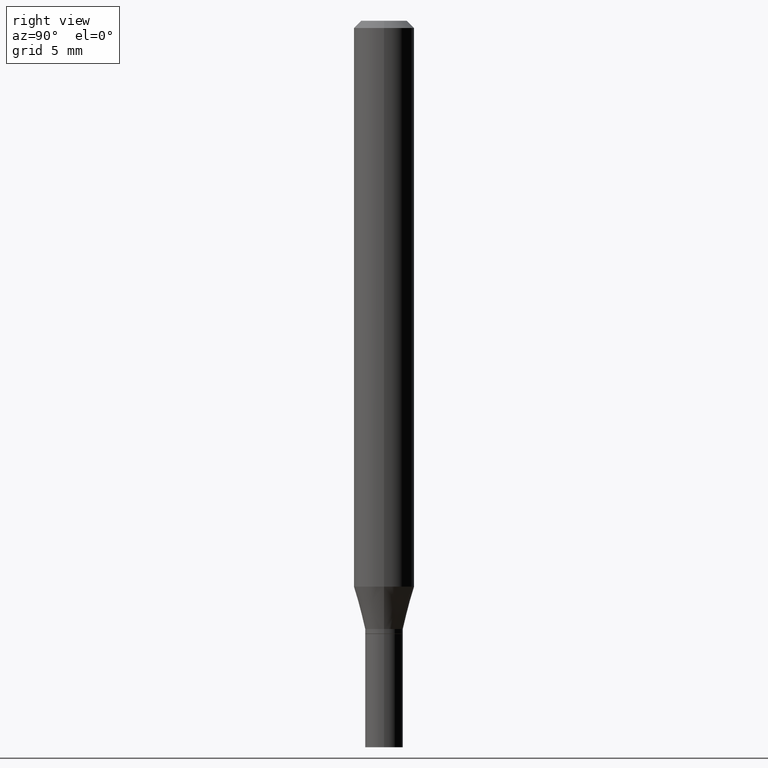
[diagram: clean part render]
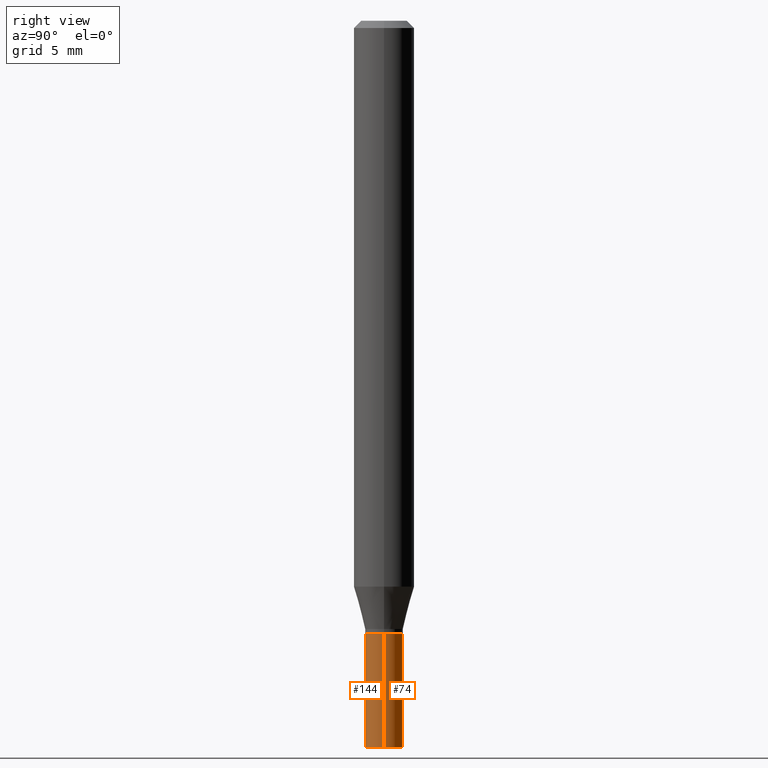
[diagram: same view with one multi-face feature highlighted, each face labeled with its STEP entity id]
A machine part, right view. The highlighted faces form ONE feature: a constant-radius fillet chain: 2 tangent blend faces with common blend radius 0.9906 mm. The faces share edges in the B-rep.
Their STEP definitions:
[1] entity #144 (Cylinder):
#13 = DIRECTION ( 'NONE',  ( -2.445468806185136877E-29, 3.491481338843145188E-15, 1.000000000000000000 ) ) ;
#19 = DIRECTION ( 'NONE',  ( 1.000000000000000000, -6.982962677686265922E-15, 4.876176775795935793E-29 ) ) ;
#20 = LINE ( 'NONE', #143, #42 ) ;
#23 = DIRECTION ( 'NONE',  ( -2.445468806185136597E-29, 3.491481338843145583E-15, 1.000000000000000000 ) ) ;
#38 = VERTEX_POINT ( 'NONE', #200 ) ;
#40 = EDGE_CURVE ( 'NONE', #38, #77, #20, .T. ) ;
#42 = VECTOR ( 'NONE', #13, 39.37007874015748143 ) ;
#49 = CARTESIAN_POINT ( 'NONE',  ( 3.668203209277704895E-29, -5.237222008264718177E-15, -1.500000000000000222 ) ) ;
#59 = CIRCLE ( 'NONE', #186, 0.03899999999999999994 ) ;
#73 = CIRCLE ( 'NONE', #400, 0.03899999999999999994 ) ;
#77 = VERTEX_POINT ( 'NONE', #241 ) ;
#133 = LINE ( 'NONE', #426, #225 ) ;
#137 = DIRECTION ( 'NONE',  ( -2.445468806185136597E-29, 3.491481338843145583E-15, 1.000000000000000000 ) ) ;
#143 = CARTESIAN_POINT ( 'NONE',  ( -0.03899999999999999994, 2.771116669464390721E-16, -1.918384685199413078E-30 ) ) ;
#144 = ADVANCED_FACE ( 'NONE', ( #389 ), #455, .T. ) ;
#184 = ORIENTED_EDGE ( 'NONE', *, *, #354, .T. ) ;
#186 = AXIS2_PLACEMENT_3D ( 'NONE', #49, #196, #190 ) ;
#187 = EDGE_CURVE ( 'NONE', #209, #220, #133, .T. ) ;
#190 = DIRECTION ( 'NONE',  ( 1.000000000000000000, -6.982962677686258033E-15, 0.000000000000000000 ) ) ;
#196 = DIRECTION ( 'NONE',  ( -2.445468806185136597E-29, 3.491481338843145583E-15, 1.000000000000000000 ) ) ;
#200 = CARTESIAN_POINT ( 'NONE',  ( -0.03899999999999999994, -4.551607024673631246E-15, -1.500000000000000222 ) ) ;
#208 = CARTESIAN_POINT ( 'NONE',  ( 3.095963508630383106E-29, -4.420215374975422163E-15, -1.266000000000000014 ) ) ;
#209 = VERTEX_POINT ( 'NONE', #398 ) ;
#210 = DIRECTION ( 'NONE',  ( -2.445468806185136877E-29, 3.491481338843145188E-15, 1.000000000000000000 ) ) ;
#220 = VERTEX_POINT ( 'NONE', #431 ) ;
#222 = ORIENTED_EDGE ( 'NONE', *, *, #447, .F. ) ;
#225 = VECTOR ( 'NONE', #210, 39.37007874015748143 ) ;
#240 = AXIS2_PLACEMENT_3D ( 'NONE', #396, #23, #19 ) ;
#241 = CARTESIAN_POINT ( 'NONE',  ( -0.03899999999999999994, -4.551607024673631246E-15, -1.266000000000000014 ) ) ;
#331 = EDGE_LOOP ( 'NONE', ( #391, #184, #422, #222 ) ) ;
#354 = EDGE_CURVE ( 'NONE', #38, #209, #59, .T. ) ;
#357 = DIRECTION ( 'NONE',  ( 1.000000000000000000, -6.982962677686258033E-15, 0.000000000000000000 ) ) ;
#389 = FACE_OUTER_BOUND ( 'NONE', #331, .T. ) ;
#391 = ORIENTED_EDGE ( 'NONE', *, *, #40, .F. ) ;
#396 = CARTESIAN_POINT ( 'NONE',  ( 0.000000000000000000, 0.000000000000000000, 0.000000000000000000 ) ) ;
#398 = CARTESIAN_POINT ( 'NONE',  ( 0.03899999999999999994, -5.509557552694482989E-15, -1.500000000000000222 ) ) ;
#400 = AXIS2_PLACEMENT_3D ( 'NONE', #208, #137, #357 ) ;
#422 = ORIENTED_EDGE ( 'NONE', *, *, #187, .T. ) ;
#426 = CARTESIAN_POINT ( 'NONE',  ( 0.03899999999999999994, -2.723355444297643682E-16, 1.901708942560414931E-30 ) ) ;
#431 = CARTESIAN_POINT ( 'NONE',  ( 0.03899999999999999994, -4.692550919405186186E-15, -1.266000000000000014 ) ) ;
#447 = EDGE_CURVE ( 'NONE', #77, #220, #73, .T. ) ;
#455 = CYLINDRICAL_SURFACE ( 'NONE', #240, 0.03899999999999999994 ) ;
[2] entity #74 (Cylinder):
#5 = AXIS2_PLACEMENT_3D ( 'NONE', #160, #385, #168 ) ;
#13 = DIRECTION ( 'NONE',  ( -2.445468806185136877E-29, 3.491481338843145188E-15, 1.000000000000000000 ) ) ;
#20 = LINE ( 'NONE', #143, #42 ) ;
#38 = VERTEX_POINT ( 'NONE', #200 ) ;
#40 = EDGE_CURVE ( 'NONE', #38, #77, #20, .T. ) ;
#42 = VECTOR ( 'NONE', #13, 39.37007874015748143 ) ;
#60 = DIRECTION ( 'NONE',  ( -2.445468806185136597E-29, 3.491481338843145583E-15, 1.000000000000000000 ) ) ;
#74 = ADVANCED_FACE ( 'NONE', ( #315 ), #204, .T. ) ;
#77 = VERTEX_POINT ( 'NONE', #241 ) ;
#104 = DIRECTION ( 'NONE',  ( 1.000000000000000000, -6.982962677686258033E-15, 0.000000000000000000 ) ) ;
#106 = CIRCLE ( 'NONE', #290, 0.03899999999999999994 ) ;
#108 = ORIENTED_EDGE ( 'NONE', *, *, #439, .F. ) ;
#133 = LINE ( 'NONE', #426, #225 ) ;
#143 = CARTESIAN_POINT ( 'NONE',  ( -0.03899999999999999994, 2.771116669464390721E-16, -1.918384685199413078E-30 ) ) ;
#160 = CARTESIAN_POINT ( 'NONE',  ( 0.000000000000000000, 0.000000000000000000, 0.000000000000000000 ) ) ;
#161 = CIRCLE ( 'NONE', #318, 0.03899999999999999994 ) ;
#168 = DIRECTION ( 'NONE',  ( 1.000000000000000000, -6.982962677686265922E-15, 4.876176775795935793E-29 ) ) ;
#187 = EDGE_CURVE ( 'NONE', #209, #220, #133, .T. ) ;
#200 = CARTESIAN_POINT ( 'NONE',  ( -0.03899999999999999994, -4.551607024673631246E-15, -1.500000000000000222 ) ) ;
#201 = CARTESIAN_POINT ( 'NONE',  ( 3.095963508630383106E-29, -4.420215374975422163E-15, -1.266000000000000014 ) ) ;
#204 = CYLINDRICAL_SURFACE ( 'NONE', #5, 0.03899999999999999994 ) ;
#209 = VERTEX_POINT ( 'NONE', #398 ) ;
#210 = DIRECTION ( 'NONE',  ( -2.445468806185136877E-29, 3.491481338843145188E-15, 1.000000000000000000 ) ) ;
#220 = VERTEX_POINT ( 'NONE', #431 ) ;
#225 = VECTOR ( 'NONE', #210, 39.37007874015748143 ) ;
#227 = EDGE_CURVE ( 'NONE', #209, #38, #161, .T. ) ;
#230 = EDGE_LOOP ( 'NONE', ( #263, #460, #108, #450 ) ) ;
#241 = CARTESIAN_POINT ( 'NONE',  ( -0.03899999999999999994, -4.551607024673631246E-15, -1.266000000000000014 ) ) ;
#252 = CARTESIAN_POINT ( 'NONE',  ( 3.668203209277704895E-29, -5.237222008264718177E-15, -1.500000000000000222 ) ) ;
#263 = ORIENTED_EDGE ( 'NONE', *, *, #227, .T. ) ;
#290 = AXIS2_PLACEMENT_3D ( 'NONE', #201, #60, #361 ) ;
#315 = FACE_OUTER_BOUND ( 'NONE', #230, .T. ) ;
#318 = AXIS2_PLACEMENT_3D ( 'NONE', #252, #441, #104 ) ;
#361 = DIRECTION ( 'NONE',  ( 1.000000000000000000, -6.982962677686258033E-15, 0.000000000000000000 ) ) ;
#385 = DIRECTION ( 'NONE',  ( -2.445468806185136597E-29, 3.491481338843145583E-15, 1.000000000000000000 ) ) ;
#398 = CARTESIAN_POINT ( 'NONE',  ( 0.03899999999999999994, -5.509557552694482989E-15, -1.500000000000000222 ) ) ;
#426 = CARTESIAN_POINT ( 'NONE',  ( 0.03899999999999999994, -2.723355444297643682E-16, 1.901708942560414931E-30 ) ) ;
#431 = CARTESIAN_POINT ( 'NONE',  ( 0.03899999999999999994, -4.692550919405186186E-15, -1.266000000000000014 ) ) ;
#439 = EDGE_CURVE ( 'NONE', #220, #77, #106, .T. ) ;
#441 = DIRECTION ( 'NONE',  ( -2.445468806185136597E-29, 3.491481338843145583E-15, 1.000000000000000000 ) ) ;
#450 = ORIENTED_EDGE ( 'NONE', *, *, #187, .F. ) ;
#460 = ORIENTED_EDGE ( 'NONE', *, *, #40, .T. ) ;